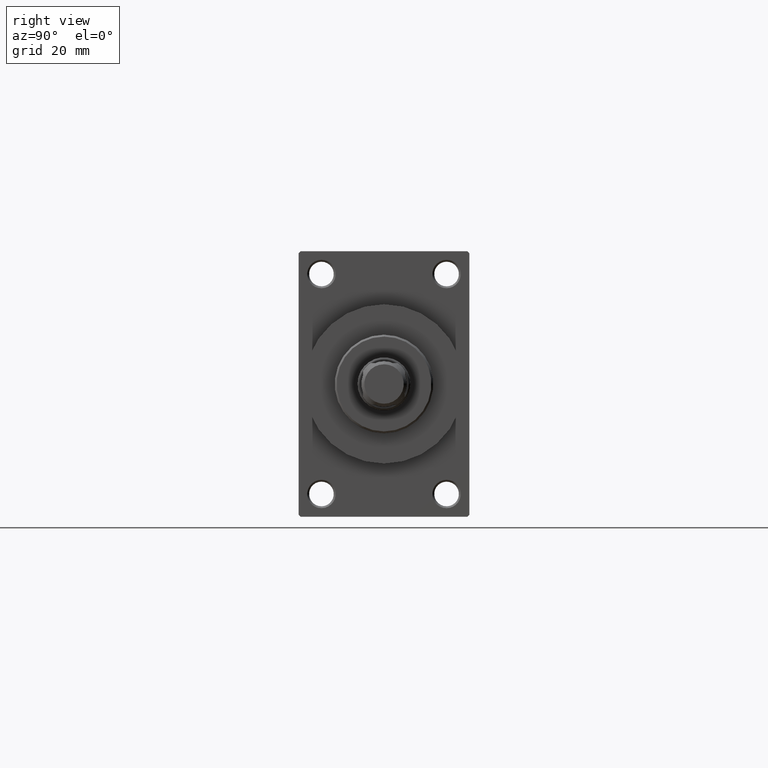
[diagram: clean part render]
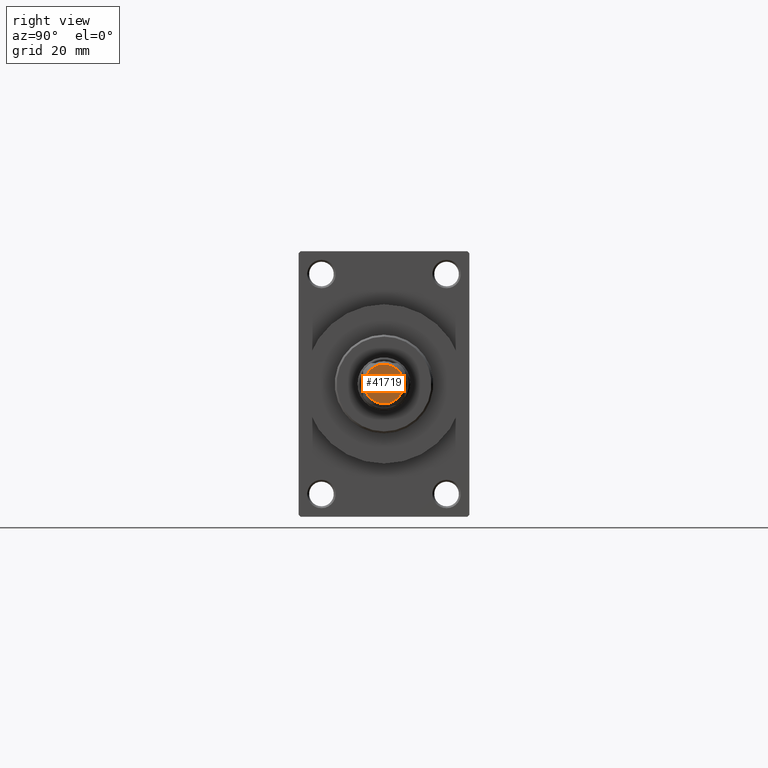
[diagram: same view with one face highlighted and labeled with its STEP entity id]
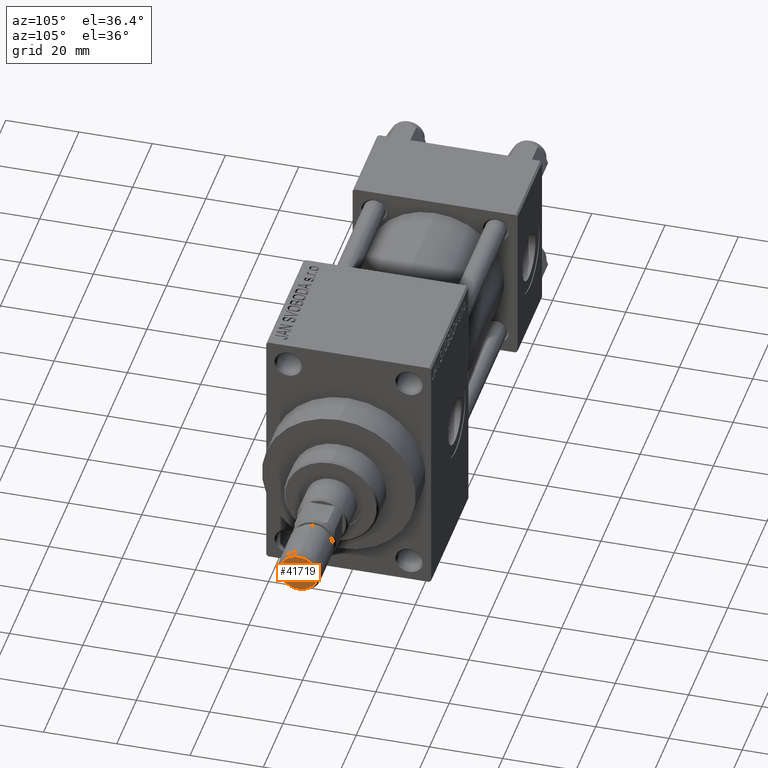
[diagram: same view with one face highlighted and labeled with its STEP entity id]
A machine part, right view. The second image highlights one B-rep face of the part: STEP entity #41719.
A second angle (auxiliary view) of the same face is appended — the face is thin or edge-on in the first view.
In plain terms, the highlighted planar face has unit normal (-1, 0, 0).
Its self-contained STEP definition (entity closure, byte-faithful):
#451 = VERTEX_POINT ( 'NONE', #40512 ) ;
#856 = CARTESIAN_POINT ( 'NONE',  ( 0.000000000000000000, 0.000000000000000000, 0.000000000000000000 ) ) ;
#2729 = DIRECTION ( 'NONE',  ( 0.000000000000000000, 0.000000000000000000, 1.000000000000000000 ) ) ;
#4679 = CIRCLE ( 'NONE', #30859, 5.199999999999992184 ) ;
#8210 = ORIENTED_EDGE ( 'NONE', *, *, #29330, .T. ) ;
#10329 = CIRCLE ( 'NONE', #32654, 5.199999999999992184 ) ;
#10901 = FACE_OUTER_BOUND ( 'NONE', #41409, .T. ) ;
#13255 = CARTESIAN_POINT ( 'NONE',  ( 5.199999999999992184, 0.000000000000000000, 0.000000000000000000 ) ) ;
#15299 = DIRECTION ( 'NONE',  ( -0.000000000000000000, -0.000000000000000000, -1.000000000000000000 ) ) ;
#17303 = DIRECTION ( 'NONE',  ( 1.000000000000000000, 0.000000000000000000, 0.000000000000000000 ) ) ;
#21034 = PLANE ( 'NONE',  #27152 ) ;
#21517 = DIRECTION ( 'NONE',  ( 1.000000000000000000, 0.000000000000000000, -0.000000000000000000 ) ) ;
#27152 = AXIS2_PLACEMENT_3D ( 'NONE', #35730, #2729, #21517 ) ;
#29330 = EDGE_CURVE ( 'NONE', #32216, #451, #4679, .T. ) ;
#30420 = ORIENTED_EDGE ( 'NONE', *, *, #45148, .T. ) ;
#30859 = AXIS2_PLACEMENT_3D ( 'NONE', #856, #15299, #37467 ) ;
#32216 = VERTEX_POINT ( 'NONE', #13255 ) ;
#32654 = AXIS2_PLACEMENT_3D ( 'NONE', #43288, #35363, #17303 ) ;
#35363 = DIRECTION ( 'NONE',  ( -0.000000000000000000, -0.000000000000000000, -1.000000000000000000 ) ) ;
#35730 = CARTESIAN_POINT ( 'NONE',  ( 0.000000000000000000, 0.000000000000000000, 0.000000000000000000 ) ) ;
#37467 = DIRECTION ( 'NONE',  ( 1.000000000000000000, 0.000000000000000000, 0.000000000000000000 ) ) ;
#40512 = CARTESIAN_POINT ( 'NONE',  ( -5.199999999999992184, 6.858022075225173621E-16, 0.000000000000000000 ) ) ;
#41409 = EDGE_LOOP ( 'NONE', ( #8210, #30420 ) ) ;
#41719 = ADVANCED_FACE ( 'NONE', ( #10901 ), #21034, .F. ) ;
#43288 = CARTESIAN_POINT ( 'NONE',  ( 0.000000000000000000, 0.000000000000000000, 0.000000000000000000 ) ) ;
#45148 = EDGE_CURVE ( 'NONE', #451, #32216, #10329, .T. ) ;